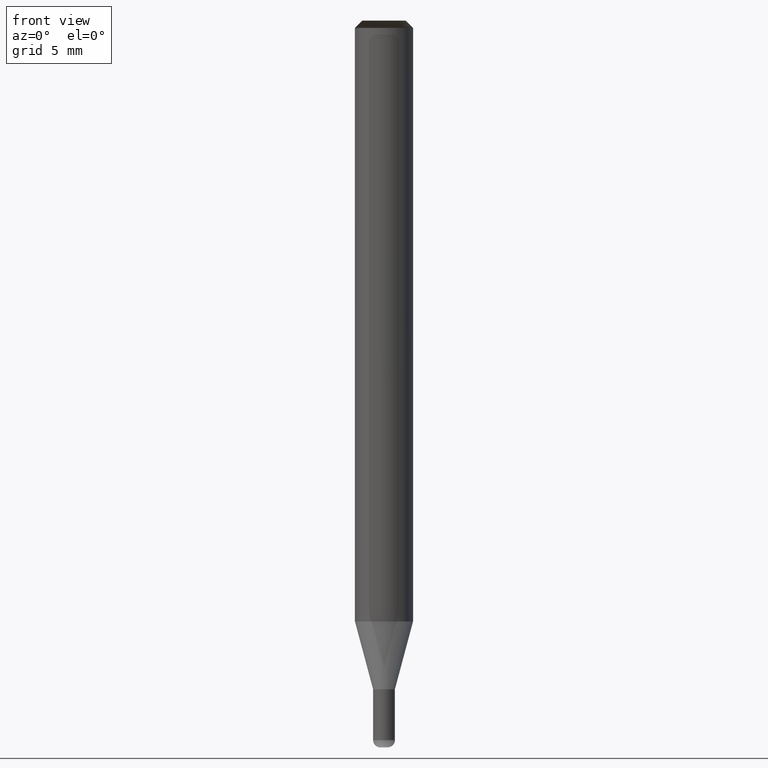
[diagram: clean part render]
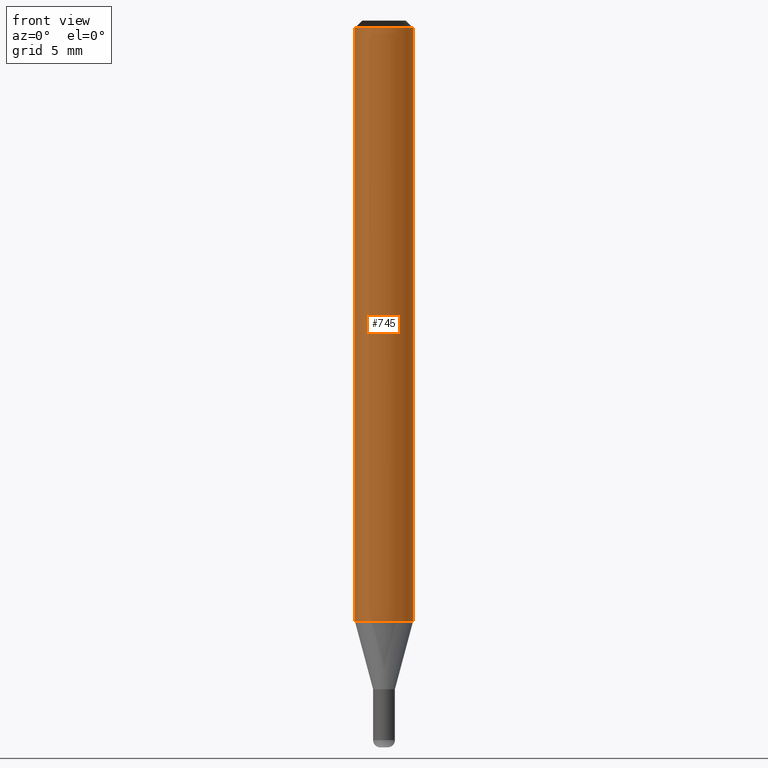
[diagram: same view with one face highlighted and labeled with its STEP entity id]
A machine part, front view. The second image highlights one B-rep face of the part: STEP entity #745.
In plain terms, the highlighted face is a freeform B-spline surface patch.
Its self-contained STEP definition (entity closure, byte-faithful):
#375=CARTESIAN_POINT('',(2.0,0.0,-0.0));
#379=CARTESIAN_POINT('',(-2.0,0.0,-0.0));
#380=CARTESIAN_POINT('',(2.0,0.0,40.834936490539));
#384=CARTESIAN_POINT('',(-2.0,0.0,40.834936490539));
#394=CARTESIAN_POINT('',(-2.0,-2.0,-0.0));
#395=CARTESIAN_POINT('',(0.0,-2.0,-0.0));
#396=CARTESIAN_POINT('',(2.0,-2.0,-0.0));
#397=CARTESIAN_POINT('',(-2.0,-2.0,40.834936490539));
#398=CARTESIAN_POINT('',(0.0,-2.0,40.834936490539));
#399=CARTESIAN_POINT('',(2.0,-2.0,40.834936490539));
#726=(
BOUNDED_SURFACE()
B_SPLINE_SURFACE(1,2,(
(#379,#394,#395,#396,#375),
(#384,#397,#398,#399,#380)
), .UNSPECIFIED.,.F.,.F.,.F.)
B_SPLINE_SURFACE_WITH_KNOTS((2,2),(3,2,3),(
0.0,1.0),(
0.0,0.5,1.0), .UNSPECIFIED.)
GEOMETRIC_REPRESENTATION_ITEM()
RATIONAL_B_SPLINE_SURFACE(((1.0,0.707106781187,1.0,0.707106781187,1.0),
(1.0,0.707106781187,1.0,0.707106781187,1.0)
))
REPRESENTATION_ITEM('')
SURFACE()
);
#727=(
BOUNDED_CURVE()
B_SPLINE_CURVE(1,(#384,#379),.UNSPECIFIED.,.F.,.F.)
B_SPLINE_CURVE_WITH_KNOTS((2,2),
(0.0,1.0),.UNSPECIFIED.)
CURVE()
GEOMETRIC_REPRESENTATION_ITEM()
RATIONAL_B_SPLINE_CURVE((1.0,1.0))
REPRESENTATION_ITEM('')
);
#728=(
BOUNDED_CURVE()
B_SPLINE_CURVE(2,(#379,#394,#395,#396,#375),.UNSPECIFIED.,.F.,.F.)
B_SPLINE_CURVE_WITH_KNOTS((3,2,3),
(0.0,0.5,1.0),.UNSPECIFIED.)
CURVE()
GEOMETRIC_REPRESENTATION_ITEM()
RATIONAL_B_SPLINE_CURVE((1.0,0.707106781187,1.0,0.707106781187,1.0))
REPRESENTATION_ITEM('')
);
#729=(
BOUNDED_CURVE()
B_SPLINE_CURVE(1,(#375,#380),.UNSPECIFIED.,.F.,.F.)
B_SPLINE_CURVE_WITH_KNOTS((2,2),
(0.0,1.0),.UNSPECIFIED.)
CURVE()
GEOMETRIC_REPRESENTATION_ITEM()
RATIONAL_B_SPLINE_CURVE((1.0,1.0))
REPRESENTATION_ITEM('')
);
#730=(
BOUNDED_CURVE()
B_SPLINE_CURVE(2,(#380,#399,#398,#397,#384),.UNSPECIFIED.,.F.,.F.)
B_SPLINE_CURVE_WITH_KNOTS((3,2,3),
(0.0,0.5,1.0),.UNSPECIFIED.)
CURVE()
GEOMETRIC_REPRESENTATION_ITEM()
RATIONAL_B_SPLINE_CURVE((1.0,0.707106781187,1.0,0.707106781187,1.0))
REPRESENTATION_ITEM('')
);
#731=VERTEX_POINT('',#375);
#732=VERTEX_POINT('',#379);
#733=VERTEX_POINT('',#380);
#734=VERTEX_POINT('',#384);
#735=EDGE_CURVE('',#734,#732,#727,.T.);
#736=EDGE_CURVE('',#732,#731,#728,.T.);
#737=EDGE_CURVE('',#731,#733,#729,.T.);
#738=EDGE_CURVE('',#733,#734,#730,.T.);
#739=ORIENTED_EDGE('',*,*,#735,.T.);
#740=ORIENTED_EDGE('',*,*,#736,.T.);
#741=ORIENTED_EDGE('',*,*,#737,.T.);
#742=ORIENTED_EDGE('',*,*,#738,.T.);
#743=EDGE_LOOP('',(#739,#740,#741,#742));
#744=FACE_OUTER_BOUND('',#743,.T.);
#745=ADVANCED_FACE('',(#744),#726,.T.);